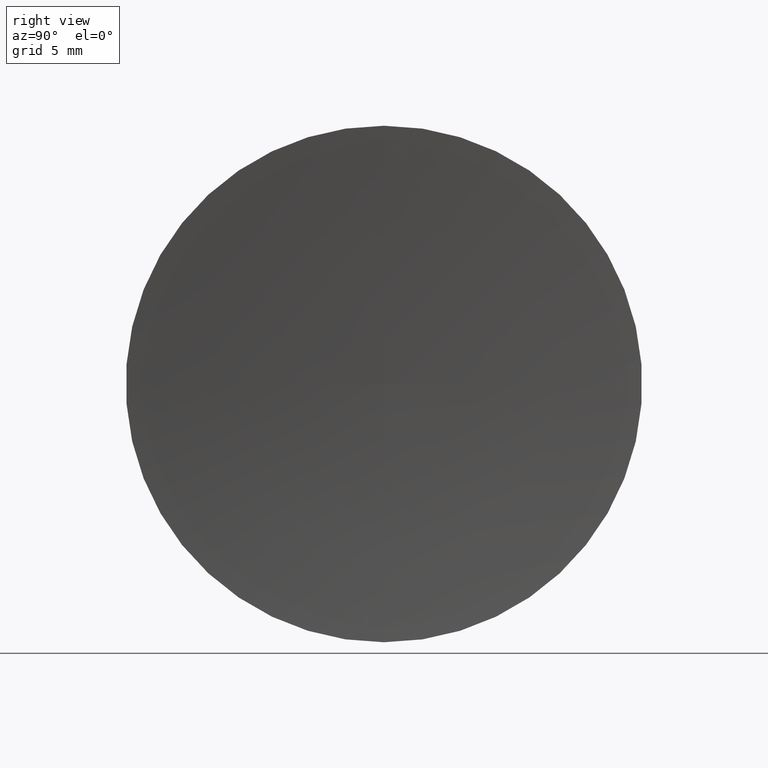
[diagram: clean part render]
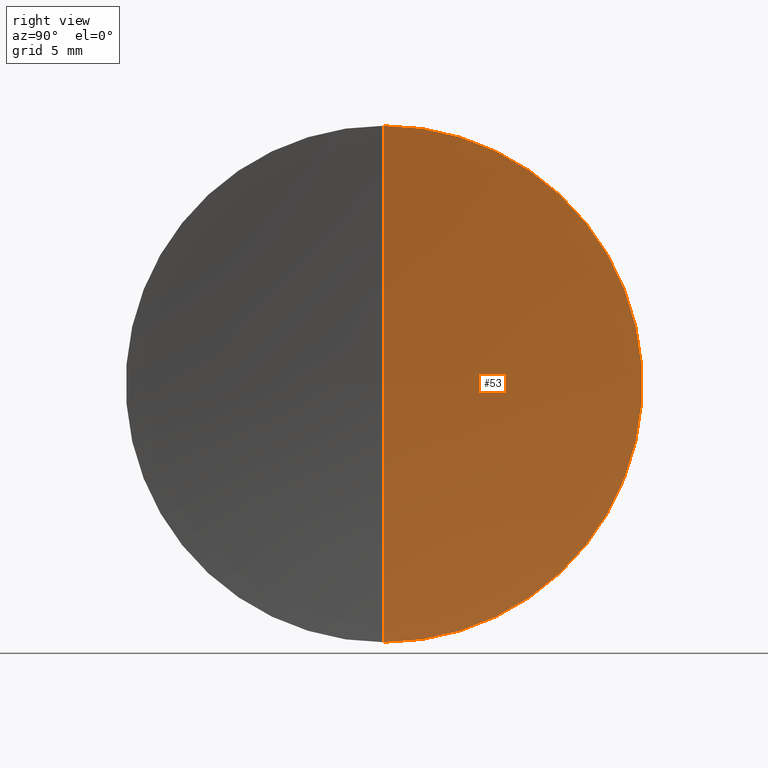
[diagram: same view with one face highlighted and labeled with its STEP entity id]
A machine part, right view. The second image highlights one B-rep face of the part: STEP entity #53.
In plain terms, the highlighted toroidal blend (fillet) surface has major radius 0.1459 mm and minor (blend) radius 129.13 mm.
Its self-contained STEP definition (entity closure, byte-faithful):
#5 = ORIENTED_EDGE ( 'NONE', *, *, #35, .F. ) ;
#17 = DIRECTION ( 'NONE',  ( 0.0000000000000000000, -1.074714458903001400E-016, 1.000000000000000000 ) ) ;
#20 = CARTESIAN_POINT ( 'NONE',  ( 188.6622546250803800, 32.61076812922678400, -0.1459030683174933300 ) ) ;
#22 = DIRECTION ( 'NONE',  ( 0.0000000000000000000, 0.0000000000000000000, -1.000000000000000000 ) ) ;
#30 = CARTESIAN_POINT ( 'NONE',  ( 60.12458236903478300, 32.61076812922678400, -12.49999999999994100 ) ) ;
#32 = CARTESIAN_POINT ( 'NONE',  ( 188.6622546250803800, 32.61076812922678400, 0.0000000000000000000 ) ) ;
#34 = VERTEX_POINT ( 'NONE', #30 ) ;
#35 = EDGE_CURVE ( 'NONE', #80, #34, #122, .T. ) ;
#39 = EDGE_CURVE ( 'NONE', #34, #61, #84, .T. ) ;
#42 = CARTESIAN_POINT ( 'NONE',  ( 59.53233705252613800, 32.61076812922678400, 0.0000000000000000000 ) ) ;
#44 = DIRECTION ( 'NONE',  ( -1.000000000000000000, -0.0000000000000000000, -0.0000000000000000000 ) ) ;
#53 = ADVANCED_FACE ( 'NONE', ( #141 ), #135, .F. ) ;
#54 = DIRECTION ( 'NONE',  ( 0.0000000000000000000, 0.0000000000000000000, 1.000000000000000000 ) ) ;
#59 = CARTESIAN_POINT ( 'NONE',  ( 188.6622546250803800, 32.61076812922678400, 0.1459030683174933300 ) ) ;
#60 = AXIS2_PLACEMENT_3D ( 'NONE', #20, #159, #17 ) ;
#61 = VERTEX_POINT ( 'NONE', #42 ) ;
#62 = ORIENTED_EDGE ( 'NONE', *, *, #39, .F. ) ;
#64 = AXIS2_PLACEMENT_3D ( 'NONE', #32, #138, #54 ) ;
#67 = CARTESIAN_POINT ( 'NONE',  ( 60.12458236903478300, 32.61076812922678400, 0.0000000000000000000 ) ) ;
#80 = VERTEX_POINT ( 'NONE', #111 ) ;
#83 = AXIS2_PLACEMENT_3D ( 'NONE', #59, #162, #22 ) ;
#84 = CIRCLE ( 'NONE', #60, 129.1300000000000000 ) ;
#85 = EDGE_CURVE ( 'NONE', #80, #61, #160, .T. ) ;
#88 = EDGE_LOOP ( 'NONE', ( #62, #5, #131 ) ) ;
#111 = CARTESIAN_POINT ( 'NONE',  ( 60.12458236903478300, 32.61076812922678400, 12.49999999999994100 ) ) ;
#112 = DIRECTION ( 'NONE',  ( 0.0000000000000000000, 0.0000000000000000000, 1.000000000000000000 ) ) ;
#122 = CIRCLE ( 'NONE', #142, 12.49999999999999600 ) ;
#131 = ORIENTED_EDGE ( 'NONE', *, *, #85, .T. ) ;
#135 = TOROIDAL_SURFACE ( 'NONE', #64, 0.1459030683174933300, 129.1300000000000000 ) ;
#138 = DIRECTION ( 'NONE',  ( -1.000000000000000000, -0.0000000000000000000, -0.0000000000000000000 ) ) ;
#141 = FACE_OUTER_BOUND ( 'NONE', #88, .T. ) ;
#142 = AXIS2_PLACEMENT_3D ( 'NONE', #67, #44, #112 ) ;
#159 = DIRECTION ( 'NONE',  ( -0.0000000000000000000, 1.000000000000000000, 1.224646799147353200E-016 ) ) ;
#160 = CIRCLE ( 'NONE', #83, 129.1300000000000000 ) ;
#162 = DIRECTION ( 'NONE',  ( 0.0000000000000000000, -1.000000000000000000, 0.0000000000000000000 ) ) ;